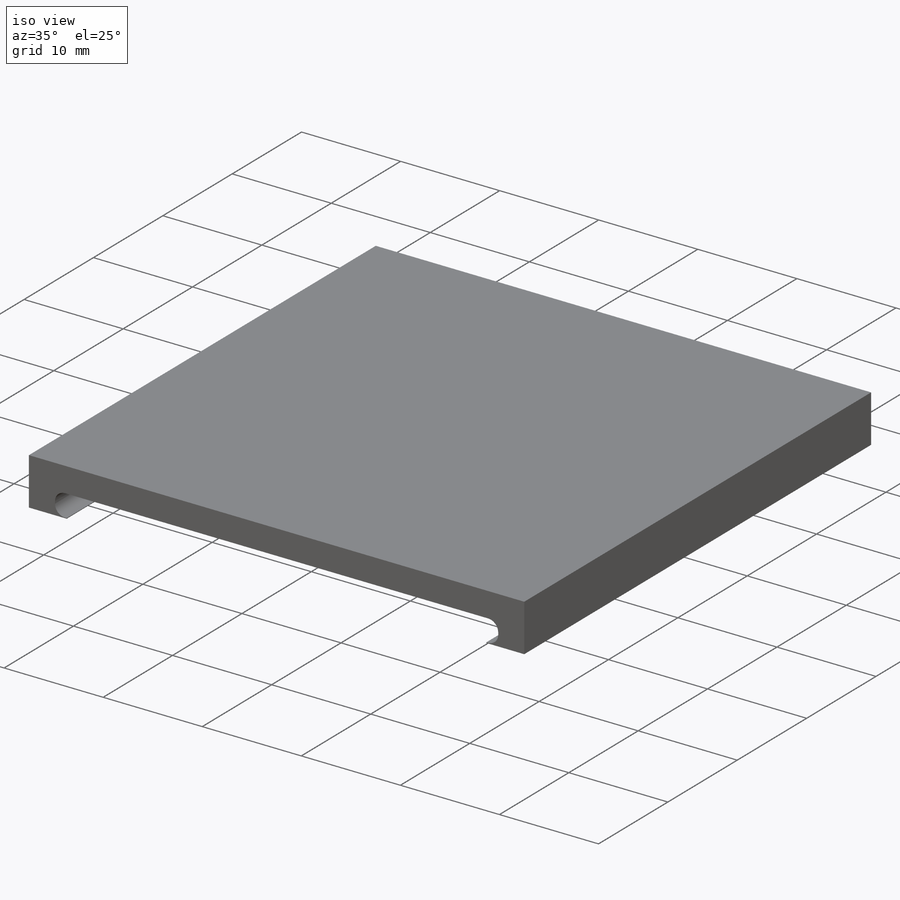
[diagram: iso view]
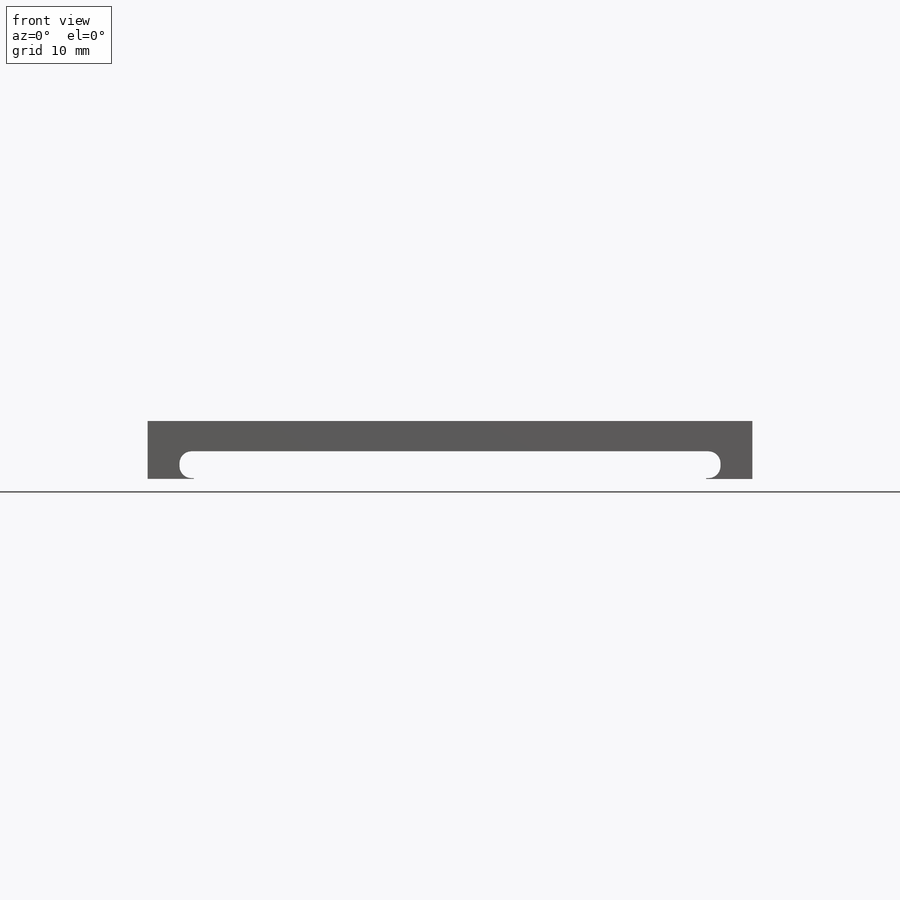
[diagram: front view]
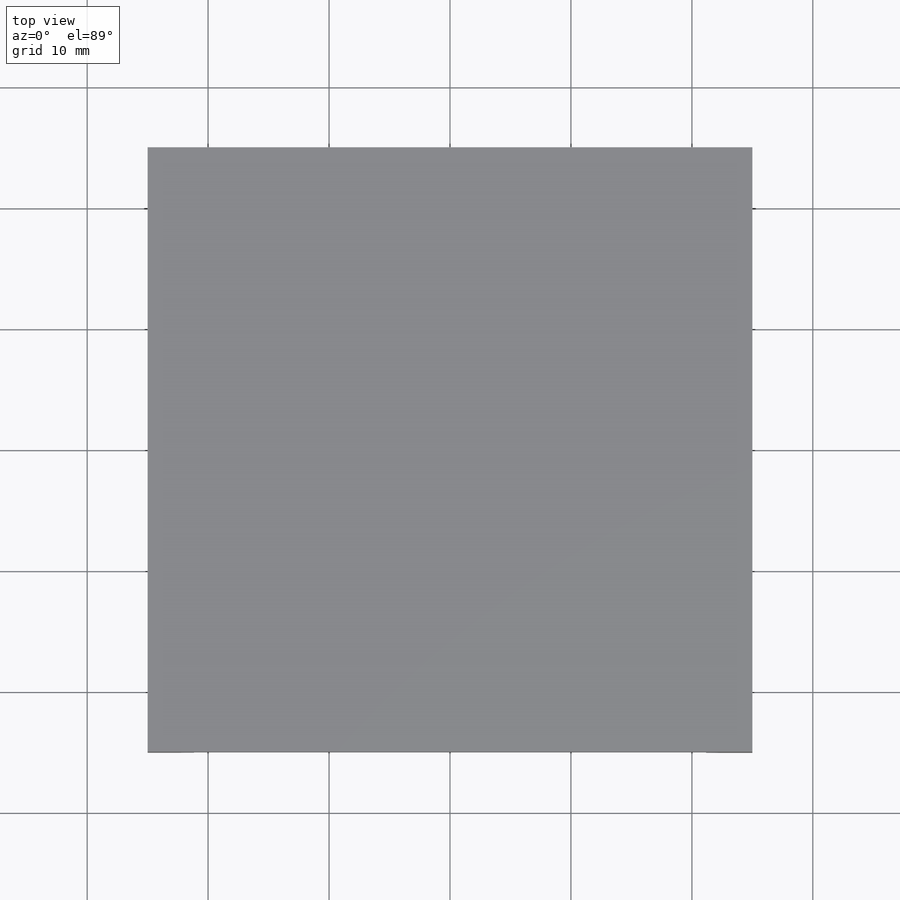
[diagram: top view]
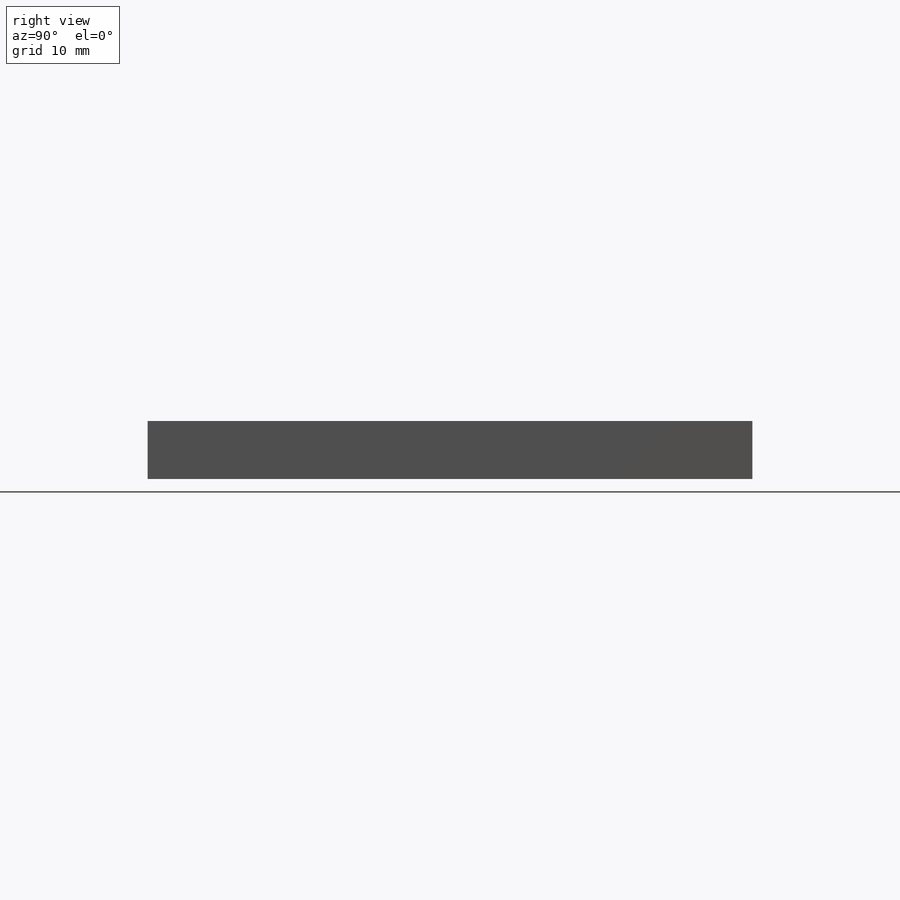
[diagram: right view]
SOLIDWORKS PART (.sldprt)
format: sldprt  version: not decoded by parser v0  size: 222,720 bytes
history: native  units: mm
features: sketch x9, cut_extrude x5, fillet x4, material x1, extrude x1 (+13 scaffold rows collapsed)
feature tree (33):
  scaffold x13  (default folders/planes/origin — collapsed)
  material  "Material <not specified>"
  sketch  "Sketch2"  dims[D1=50.0mm]
  extrude  "Boss-Extrude1"  Depth=5mm
  sketch  "Sketch4"
  sketch  "Sketch6"  dims[D1=2.5mm]
  cut_extrude  "Cut-Extrude1"  Depth=50mm
  sketch  "Sketch9"
  cut_extrude  "Cut-Extrude3"  Depth=50mm
  fillet  "Fillet2"  Radius=1mm
  fillet  "Fillet3"  Radius=1mm
  sketch  "Sketch11"  dims[D1=~1.188643mm]
  cut_extrude  "Cut-Extrude4"  Depth=50mm
  fillet  "Fillet5"  Radius=1mm
  fillet  "Fillet6"  Radius=1mm
  sketch  "Sketch13"
  sketch  "Sketch14"
  cut_extrude  "Cut-Extrude5"  Depth=50mm
  sketch  "Sketch15"
  sketch  "Sketch16"
  cut_extrude  "Cut-Extrude6"  Depth=50mm
decode coverage: 13 of 19 modeling features carry decoded parameters
note: ~ marks probable driven/reference dimensions
note: suppression state not decoded; provenance and decode notes live in map.json
